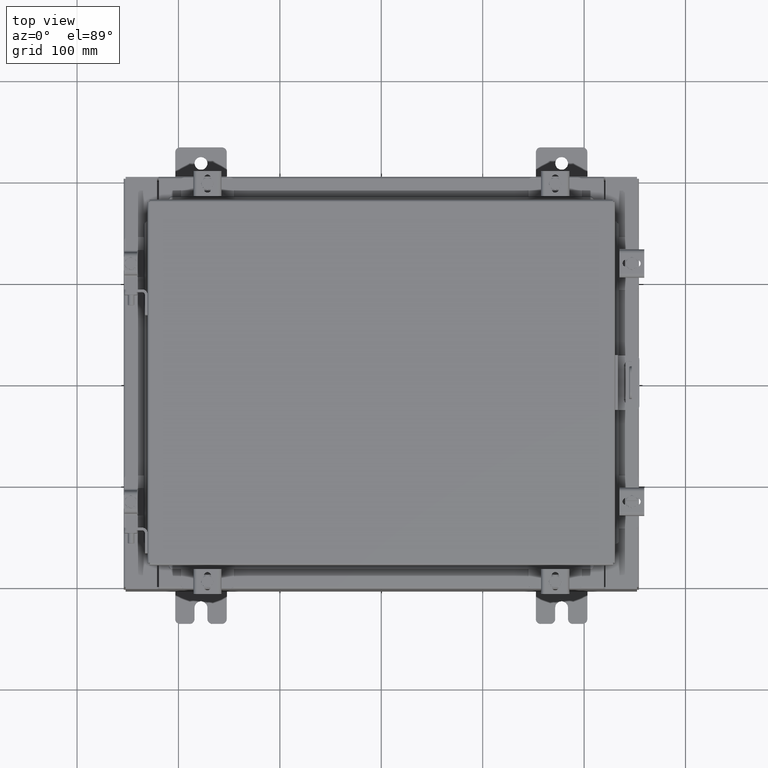
[diagram: clean part render]
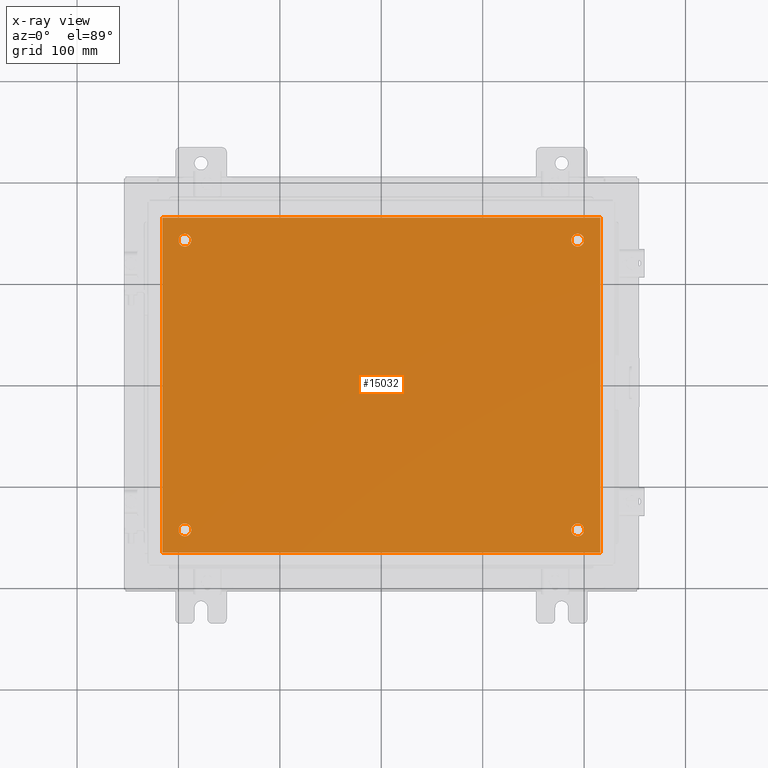
[diagram: x-ray — body ghosted, one internal face saturated and labeled with its STEP entity id]
A machine part, top view, then the same camera in x-ray: the body is ghosted and one INTERNAL B-rep face — a face not visible from any outside direction — is saturated and labeled: STEP entity #15032.
In plain terms, the highlighted planar face has unit normal (0, 0, -1).
Its self-contained STEP definition (entity closure, byte-faithful):
#129 = LINE ( 'NONE', #8061, #8158 ) ;
#334 = CARTESIAN_POINT ( 'NONE',  ( 7.625000000000000000, -5.625000000000000000, -0.1039999999999999800 ) ) ;
#379 = EDGE_CURVE ( 'NONE', #20471, #11823, #3351, .T. ) ;
#611 = ORIENTED_EDGE ( 'NONE', *, *, #2595, .F. ) ;
#714 = DIRECTION ( 'NONE',  ( -1.000000000000000000, 0.0000000000000000000, 0.0000000000000000000 ) ) ;
#758 = FACE_OUTER_BOUND ( 'NONE', #19364, .T. ) ;
#892 = AXIS2_PLACEMENT_3D ( 'NONE', #4007, #5611, #16920 ) ;
#1233 = VERTEX_POINT ( 'NONE', #8427 ) ;
#1544 = EDGE_LOOP ( 'NONE', ( #2304, #8754 ) ) ;
#1725 = EDGE_CURVE ( 'NONE', #19157, #11765, #12598, .T. ) ;
#1862 = EDGE_CURVE ( 'NONE', #11823, #20471, #1958, .T. ) ;
#1931 = DIRECTION ( 'NONE',  ( -1.000000000000000000, 0.0000000000000000000, 0.0000000000000000000 ) ) ;
#1958 = CIRCLE ( 'NONE', #3843, 0.2499999999999987000 ) ;
#2181 = CIRCLE ( 'NONE', #7796, 0.2499999999999998100 ) ;
#2267 = VERTEX_POINT ( 'NONE', #14390 ) ;
#2304 = ORIENTED_EDGE ( 'NONE', *, *, #1725, .T. ) ;
#2462 = CARTESIAN_POINT ( 'NONE',  ( 8.500000000000003600, -6.500000000000000000, -0.1039999999999999800 ) ) ;
#2595 = EDGE_CURVE ( 'NONE', #8261, #1233, #16502, .T. ) ;
#2738 = ORIENTED_EDGE ( 'NONE', *, *, #14028, .F. ) ;
#3122 = CARTESIAN_POINT ( 'NONE',  ( 8.500000000000003600, -6.500000000000000000, -0.1039999999999999800 ) ) ;
#3143 = LINE ( 'NONE', #3122, #19359 ) ;
#3286 = EDGE_CURVE ( 'NONE', #15901, #3460, #3143, .T. ) ;
#3351 = CIRCLE ( 'NONE', #4012, 0.2499999999999987000 ) ;
#3460 = VERTEX_POINT ( 'NONE', #19740 ) ;
#3495 = CARTESIAN_POINT ( 'NONE',  ( -7.625000000000000000, 5.625000000000000000, -0.1039999999999999800 ) ) ;
#3843 = AXIS2_PLACEMENT_3D ( 'NONE', #20529, #13486, #5746 ) ;
#4007 = CARTESIAN_POINT ( 'NONE',  ( 0.0000000000000000000, 0.0000000000000000000, -0.1039999999999999800 ) ) ;
#4012 = AXIS2_PLACEMENT_3D ( 'NONE', #20199, #10868, #16967 ) ;
#4549 = CARTESIAN_POINT ( 'NONE',  ( 7.375000000000000900, 5.625000000000000000, -0.1039999999999999800 ) ) ;
#4598 = CIRCLE ( 'NONE', #20854, 0.2499999999999987000 ) ;
#4617 = VERTEX_POINT ( 'NONE', #11124 ) ;
#4769 = CARTESIAN_POINT ( 'NONE',  ( -7.874999999999999100, -5.625000000000000000, -0.1039999999999999800 ) ) ;
#5012 = FACE_BOUND ( 'NONE', #20578, .T. ) ;
#5506 = CARTESIAN_POINT ( 'NONE',  ( -8.499999999999996400, -6.500000000000000000, -0.1039999999999999800 ) ) ;
#5611 = DIRECTION ( 'NONE',  ( 0.0000000000000000000, 0.0000000000000000000, -1.000000000000000000 ) ) ;
#5746 = DIRECTION ( 'NONE',  ( -1.000000000000000000, 0.0000000000000000000, 0.0000000000000000000 ) ) ;
#5941 = DIRECTION ( 'NONE',  ( -0.0000000000000000000, -0.0000000000000000000, 1.000000000000000000 ) ) ;
#6141 = CARTESIAN_POINT ( 'NONE',  ( -7.625000000000000000, -5.625000000000000000, -0.1039999999999999800 ) ) ;
#6376 = ORIENTED_EDGE ( 'NONE', *, *, #18893, .T. ) ;
#6911 = CARTESIAN_POINT ( 'NONE',  ( -7.625000000000000000, 5.625000000000000000, -0.1039999999999999800 ) ) ;
#7148 = AXIS2_PLACEMENT_3D ( 'NONE', #20031, #10340, #714 ) ;
#7222 = AXIS2_PLACEMENT_3D ( 'NONE', #3495, #9216, #10646 ) ;
#7410 = VECTOR ( 'NONE', #13648, 39.37007874015748100 ) ;
#7769 = DIRECTION ( 'NONE',  ( -1.000000000000000000, 0.0000000000000000000, 0.0000000000000000000 ) ) ;
#7796 = AXIS2_PLACEMENT_3D ( 'NONE', #6911, #18223, #8524 ) ;
#7838 = LINE ( 'NONE', #14763, #20206 ) ;
#8042 = EDGE_LOOP ( 'NONE', ( #9721, #9524 ) ) ;
#8061 = CARTESIAN_POINT ( 'NONE',  ( -8.499999999999996400, -6.500000000000000000, -0.1039999999999999800 ) ) ;
#8158 = VECTOR ( 'NONE', #10628, 39.37007874015748100 ) ;
#8244 = CARTESIAN_POINT ( 'NONE',  ( -8.499999999999996400, 6.500000000000000000, -0.1039999999999999800 ) ) ;
#8261 = VERTEX_POINT ( 'NONE', #8244 ) ;
#8427 = CARTESIAN_POINT ( 'NONE',  ( -8.499999999999996400, -6.500000000000000000, -0.1039999999999999800 ) ) ;
#8524 = DIRECTION ( 'NONE',  ( -1.000000000000000000, 0.0000000000000000000, 0.0000000000000000000 ) ) ;
#8754 = ORIENTED_EDGE ( 'NONE', *, *, #17442, .T. ) ;
#8795 = ORIENTED_EDGE ( 'NONE', *, *, #9571, .F. ) ;
#9017 = ORIENTED_EDGE ( 'NONE', *, *, #1862, .T. ) ;
#9216 = DIRECTION ( 'NONE',  ( -0.0000000000000000000, -0.0000000000000000000, 1.000000000000000000 ) ) ;
#9524 = ORIENTED_EDGE ( 'NONE', *, *, #13693, .T. ) ;
#9571 = EDGE_CURVE ( 'NONE', #1233, #15901, #129, .T. ) ;
#9721 = ORIENTED_EDGE ( 'NONE', *, *, #19484, .T. ) ;
#9787 = FACE_BOUND ( 'NONE', #8042, .T. ) ;
#10340 = DIRECTION ( 'NONE',  ( -0.0000000000000000000, -0.0000000000000000000, 1.000000000000000000 ) ) ;
#10628 = DIRECTION ( 'NONE',  ( 1.000000000000000000, 0.0000000000000000000, 0.0000000000000000000 ) ) ;
#10646 = DIRECTION ( 'NONE',  ( -1.000000000000000000, 0.0000000000000000000, 0.0000000000000000000 ) ) ;
#10868 = DIRECTION ( 'NONE',  ( -0.0000000000000000000, -0.0000000000000000000, 1.000000000000000000 ) ) ;
#11124 = CARTESIAN_POINT ( 'NONE',  ( -7.375000000000000000, -5.625000000000000000, -0.1039999999999999800 ) ) ;
#11587 = ORIENTED_EDGE ( 'NONE', *, *, #3286, .F. ) ;
#11595 = DIRECTION ( 'NONE',  ( -0.0000000000000000000, -0.0000000000000000000, 1.000000000000000000 ) ) ;
#11765 = VERTEX_POINT ( 'NONE', #18854 ) ;
#11823 = VERTEX_POINT ( 'NONE', #14133 ) ;
#11906 = CARTESIAN_POINT ( 'NONE',  ( 7.874999999999998200, -5.625000000000000000, -0.1039999999999999800 ) ) ;
#12230 = VERTEX_POINT ( 'NONE', #11906 ) ;
#12598 = CIRCLE ( 'NONE', #7222, 0.2499999999999998100 ) ;
#12770 = EDGE_CURVE ( 'NONE', #2267, #12230, #4598, .T. ) ;
#12863 = DIRECTION ( 'NONE',  ( 0.0000000000000000000, 1.000000000000000000, 0.0000000000000000000 ) ) ;
#12879 = CARTESIAN_POINT ( 'NONE',  ( -7.375000000000000000, 5.625000000000000000, -0.1039999999999999800 ) ) ;
#13033 = EDGE_LOOP ( 'NONE', ( #9017, #15086 ) ) ;
#13386 = AXIS2_PLACEMENT_3D ( 'NONE', #15622, #5941, #17237 ) ;
#13486 = DIRECTION ( 'NONE',  ( -0.0000000000000000000, -0.0000000000000000000, 1.000000000000000000 ) ) ;
#13648 = DIRECTION ( 'NONE',  ( -0.0000000000000000000, -1.000000000000000000, -0.0000000000000000000 ) ) ;
#13693 = EDGE_CURVE ( 'NONE', #19746, #4617, #20472, .T. ) ;
#14028 = EDGE_CURVE ( 'NONE', #3460, #8261, #7838, .T. ) ;
#14133 = CARTESIAN_POINT ( 'NONE',  ( 7.874999999999998200, 5.625000000000000000, -0.1039999999999999800 ) ) ;
#14390 = CARTESIAN_POINT ( 'NONE',  ( 7.375000000000000900, -5.625000000000000000, -0.1039999999999999800 ) ) ;
#14641 = FACE_BOUND ( 'NONE', #13033, .T. ) ;
#14763 = CARTESIAN_POINT ( 'NONE',  ( -8.499999999999996400, 6.500000000000000000, -0.1039999999999999800 ) ) ;
#15032 = ADVANCED_FACE ( 'NONE', ( #9787, #5012, #14641, #18435, #758 ), #16842, .T. ) ;
#15086 = ORIENTED_EDGE ( 'NONE', *, *, #379, .T. ) ;
#15622 = CARTESIAN_POINT ( 'NONE',  ( 7.625000000000000000, -5.625000000000000000, -0.1039999999999999800 ) ) ;
#15875 = AXIS2_PLACEMENT_3D ( 'NONE', #6141, #17439, #7769 ) ;
#15901 = VERTEX_POINT ( 'NONE', #2462 ) ;
#16502 = LINE ( 'NONE', #5506, #7410 ) ;
#16842 = PLANE ( 'NONE',  #892 ) ;
#16920 = DIRECTION ( 'NONE',  ( -1.000000000000000000, 0.0000000000000000000, -0.0000000000000000000 ) ) ;
#16967 = DIRECTION ( 'NONE',  ( -1.000000000000000000, 0.0000000000000000000, 0.0000000000000000000 ) ) ;
#17165 = ORIENTED_EDGE ( 'NONE', *, *, #12770, .T. ) ;
#17237 = DIRECTION ( 'NONE',  ( -1.000000000000000000, 0.0000000000000000000, 0.0000000000000000000 ) ) ;
#17439 = DIRECTION ( 'NONE',  ( -0.0000000000000000000, -0.0000000000000000000, 1.000000000000000000 ) ) ;
#17442 = EDGE_CURVE ( 'NONE', #11765, #19157, #2181, .T. ) ;
#18008 = DIRECTION ( 'NONE',  ( -1.000000000000000000, -0.0000000000000000000, -0.0000000000000000000 ) ) ;
#18223 = DIRECTION ( 'NONE',  ( -0.0000000000000000000, -0.0000000000000000000, 1.000000000000000000 ) ) ;
#18435 = FACE_BOUND ( 'NONE', #1544, .T. ) ;
#18571 = CIRCLE ( 'NONE', #13386, 0.2499999999999987000 ) ;
#18854 = CARTESIAN_POINT ( 'NONE',  ( -7.874999999999999100, 5.625000000000000000, -0.1039999999999999800 ) ) ;
#18893 = EDGE_CURVE ( 'NONE', #12230, #2267, #18571, .T. ) ;
#19056 = CIRCLE ( 'NONE', #7148, 0.2499999999999998100 ) ;
#19157 = VERTEX_POINT ( 'NONE', #12879 ) ;
#19359 = VECTOR ( 'NONE', #12863, 39.37007874015748100 ) ;
#19364 = EDGE_LOOP ( 'NONE', ( #11587, #8795, #611, #2738 ) ) ;
#19484 = EDGE_CURVE ( 'NONE', #4617, #19746, #19056, .T. ) ;
#19740 = CARTESIAN_POINT ( 'NONE',  ( 8.500000000000003600, 6.500000000000000000, -0.1039999999999999800 ) ) ;
#19746 = VERTEX_POINT ( 'NONE', #4769 ) ;
#20031 = CARTESIAN_POINT ( 'NONE',  ( -7.625000000000000000, -5.625000000000000000, -0.1039999999999999800 ) ) ;
#20199 = CARTESIAN_POINT ( 'NONE',  ( 7.625000000000000000, 5.625000000000000000, -0.1039999999999999800 ) ) ;
#20206 = VECTOR ( 'NONE', #18008, 39.37007874015748100 ) ;
#20471 = VERTEX_POINT ( 'NONE', #4549 ) ;
#20472 = CIRCLE ( 'NONE', #15875, 0.2499999999999998100 ) ;
#20529 = CARTESIAN_POINT ( 'NONE',  ( 7.625000000000000000, 5.625000000000000000, -0.1039999999999999800 ) ) ;
#20578 = EDGE_LOOP ( 'NONE', ( #6376, #17165 ) ) ;
#20854 = AXIS2_PLACEMENT_3D ( 'NONE', #334, #11595, #1931 ) ;